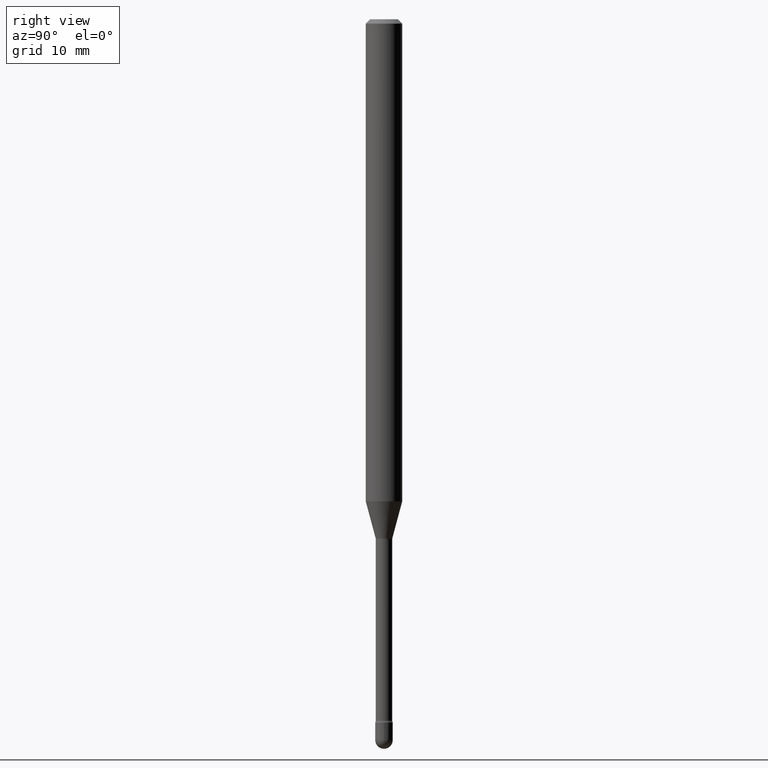
[diagram: clean part render]
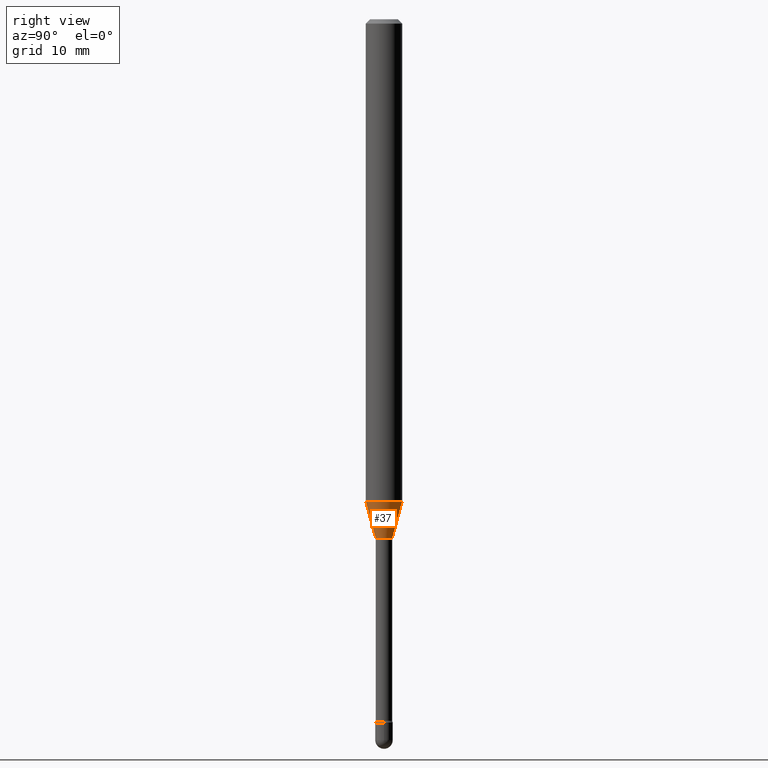
[diagram: same view with one face highlighted and labeled with its STEP entity id]
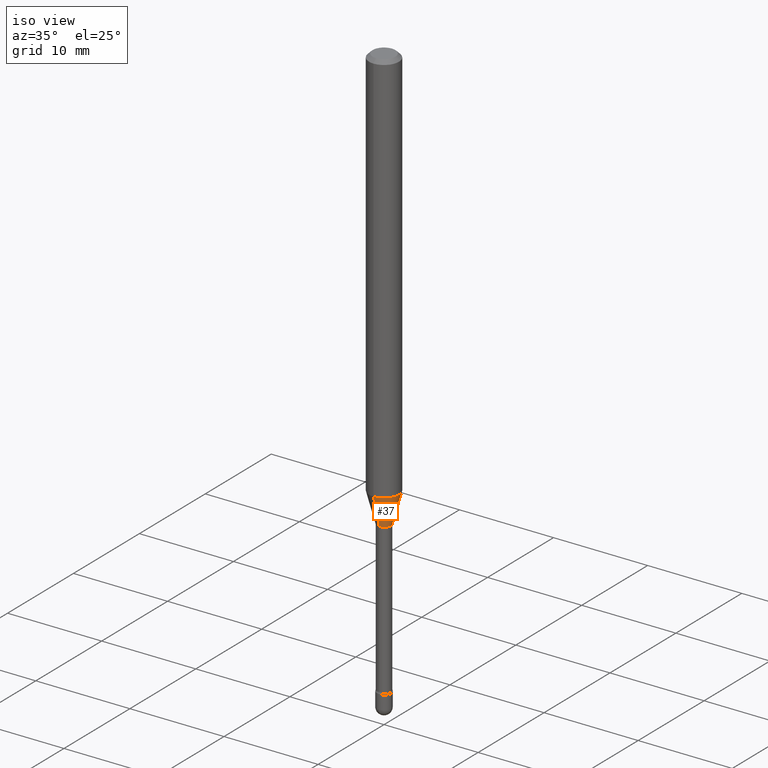
[diagram: same view with one face highlighted and labeled with its STEP entity id]
A machine part, right view. The second image highlights one B-rep face of the part: STEP entity #37.
A second angle (iso view) of the same face is appended — the face is thin or edge-on in the first view.
In plain terms, the highlighted conical surface has half-angle 15 deg.
Its self-contained STEP definition (entity closure, byte-faithful):
#12 = CONICAL_SURFACE ( 'NONE', #293, 0.02871111260566398468, 0.2617993877991500740 ) ;
#13 = ORIENTED_EDGE ( 'NONE', *, *, #194, .F. ) ;
#16 = DIRECTION ( 'NONE',  ( -6.982962677686265133E-15, -1.000000000000000000, 0.000000000000000000 ) ) ;
#25 = CARTESIAN_POINT ( 'NONE',  ( 4.039828952651802244E-29, -5.767984295886507210E-15, -1.651990657300387966 ) ) ;
#30 = ORIENTED_EDGE ( 'NONE', *, *, #109, .T. ) ;
#37 = ADVANCED_FACE ( 'NONE', ( #505 ), #12, .T. ) ;
#39 = CARTESIAN_POINT ( 'NONE',  ( -2.004886277601557809E-16, -0.02871111260567019152, -1.778092501787273294 ) ) ;
#67 = CARTESIAN_POINT ( 'NONE',  ( -2.004886277601557809E-16, -0.02871111260567019152, -1.778092501787273294 ) ) ;
#73 = AXIS2_PLACEMENT_3D ( 'NONE', #25, #284, #448 ) ;
#75 = DIRECTION ( 'NONE',  ( -6.982962677686265133E-15, -1.000000000000000000, 0.000000000000000000 ) ) ;
#79 = EDGE_LOOP ( 'NONE', ( #330, #30, #96, #13 ) ) ;
#96 = ORIENTED_EDGE ( 'NONE', *, *, #532, .F. ) ;
#99 = VERTEX_POINT ( 'NONE', #39 ) ;
#109 = EDGE_CURVE ( 'NONE', #442, #305, #528, .T. ) ;
#183 = AXIS2_PLACEMENT_3D ( 'NONE', #281, #403, #16 ) ;
#190 = EDGE_CURVE ( 'NONE', #99, #442, #492, .T. ) ;
#193 = DIRECTION ( 'NONE',  ( -1.807323732225328562E-15, -0.2588190451025179639, 0.9659258262890690894 ) ) ;
#194 = EDGE_CURVE ( 'NONE', #99, #217, #285, .T. ) ;
#217 = VERTEX_POINT ( 'NONE', #357 ) ;
#244 = CARTESIAN_POINT ( 'NONE',  ( 2.040047249754913233E-16, 0.02871111260565777784, -1.778092501787273294 ) ) ;
#248 = VECTOR ( 'NONE', #193, 39.37007874015748854 ) ;
#281 = CARTESIAN_POINT ( 'NONE',  ( 4.348202296102425103E-29, -6.208273383157308080E-15, -1.778092501787273294 ) ) ;
#284 = DIRECTION ( 'NONE',  ( -2.445430871415166747E-29, 3.491535663592855480E-15, 1.000000000000000000 ) ) ;
#285 = LINE ( 'NONE', #67, #248 ) ;
#288 = CARTESIAN_POINT ( 'NONE',  ( 3.240469674127972582E-16, 0.02871111260565777784, -1.778092501787273294 ) ) ;
#292 = CIRCLE ( 'NONE', #73, 0.06250000000000000000 ) ;
#293 = AXIS2_PLACEMENT_3D ( 'NONE', #511, #559, #75 ) ;
#305 = VERTEX_POINT ( 'NONE', #429 ) ;
#330 = ORIENTED_EDGE ( 'NONE', *, *, #190, .T. ) ;
#357 = CARTESIAN_POINT ( 'NONE',  ( -4.364351673553514375E-16, -0.06250000000000580092, -1.651990657300387744 ) ) ;
#403 = DIRECTION ( 'NONE',  ( -2.445430871415166747E-29, 3.491535663592855480E-15, 1.000000000000000000 ) ) ;
#429 = CARTESIAN_POINT ( 'NONE',  ( 4.440892098501027495E-16, 0.06249999999999421296, -1.651990657300388188 ) ) ;
#442 = VERTEX_POINT ( 'NONE', #288 ) ;
#448 = DIRECTION ( 'NONE',  ( -6.982962677686265922E-15, -1.000000000000000000, 4.370956789862821150E-15 ) ) ;
#492 = CIRCLE ( 'NONE', #183, 0.02871111260566398468 ) ;
#499 = VECTOR ( 'NONE', #509, 39.37007874015748854 ) ;
#505 = FACE_OUTER_BOUND ( 'NONE', #79, .T. ) ;
#509 = DIRECTION ( 'NONE',  ( 1.839019923739598738E-15, 0.2588190451025247363, 0.9659258262890673130 ) ) ;
#511 = CARTESIAN_POINT ( 'NONE',  ( 4.348202296102425103E-29, -6.208273383157308080E-15, -1.778092501787273294 ) ) ;
#528 = LINE ( 'NONE', #244, #499 ) ;
#532 = EDGE_CURVE ( 'NONE', #217, #305, #292, .T. ) ;
#559 = DIRECTION ( 'NONE',  ( -2.445430871415166747E-29, 3.491535663592855480E-15, 1.000000000000000000 ) ) ;